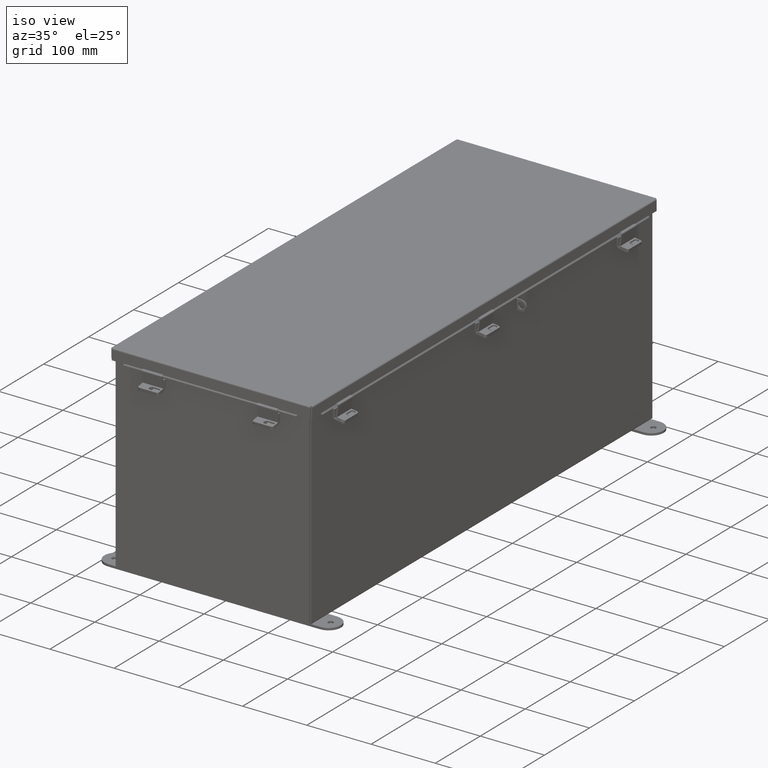
[diagram: clean part render]
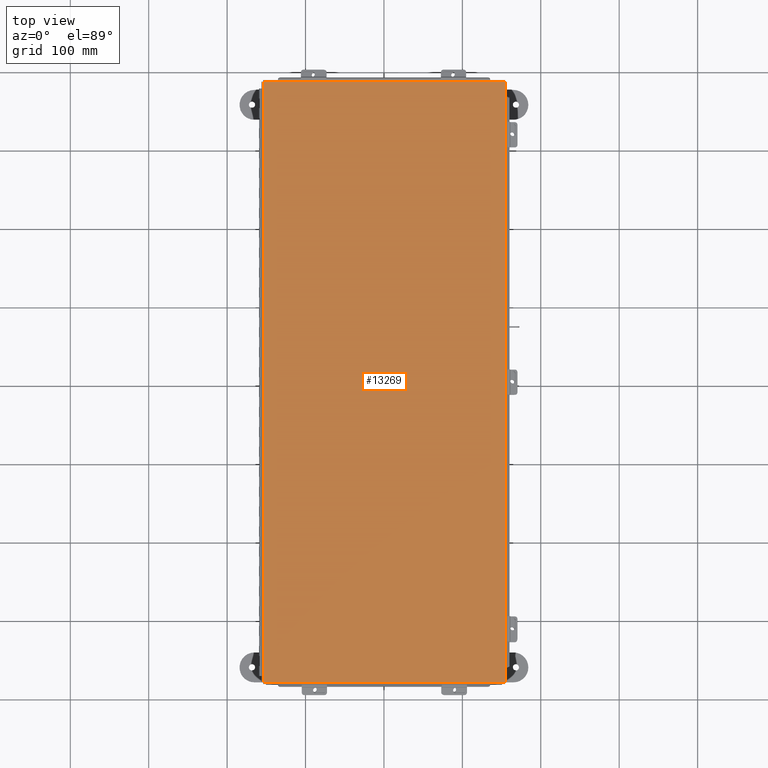
[diagram: tour spotlight — one face highlighted and labeled with its STEP entity id]
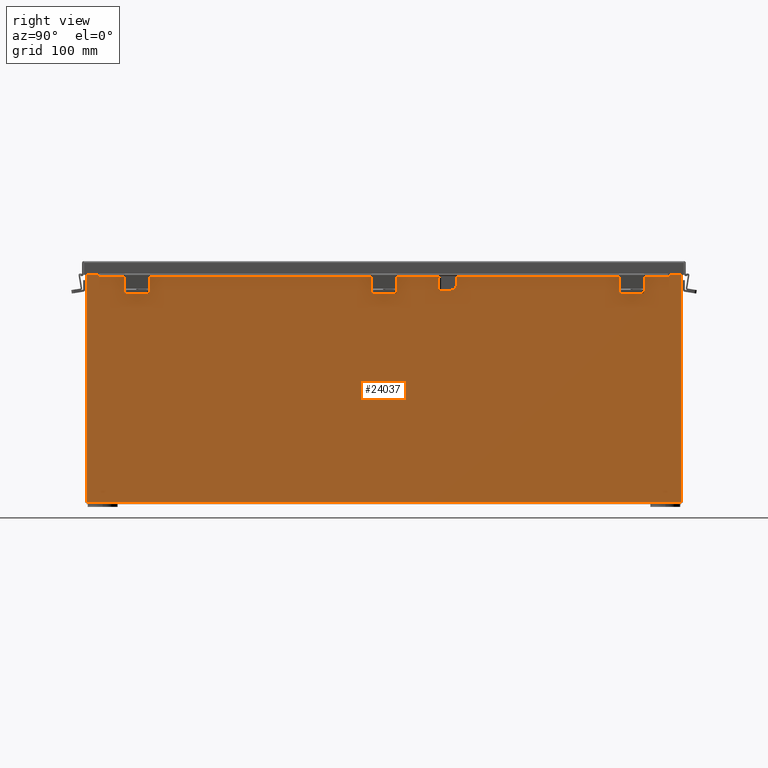
[diagram: tour spotlight — one face highlighted and labeled with its STEP entity id]
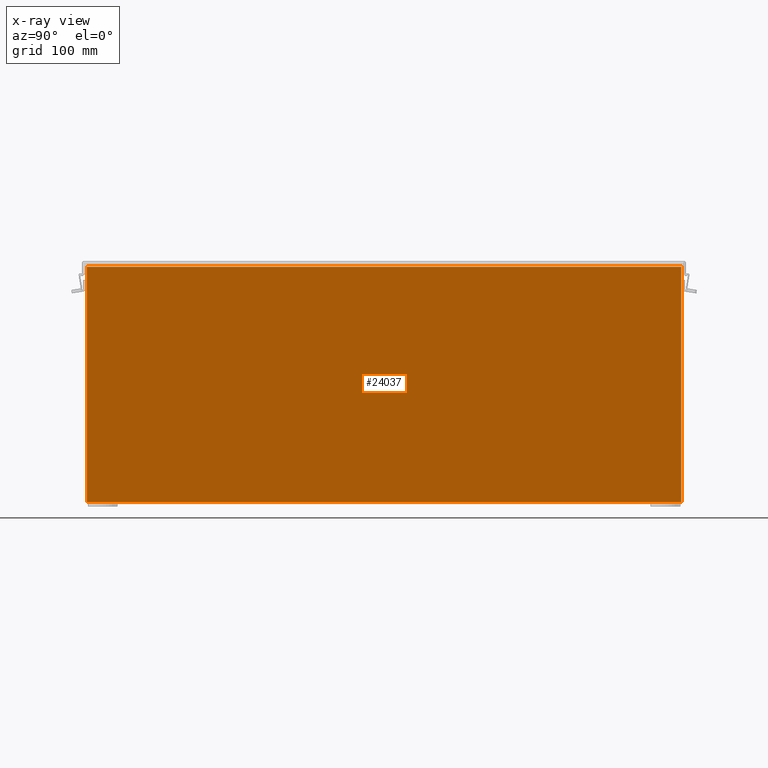
[diagram: x-ray of the same camera — body ghosted, this tour face saturated]
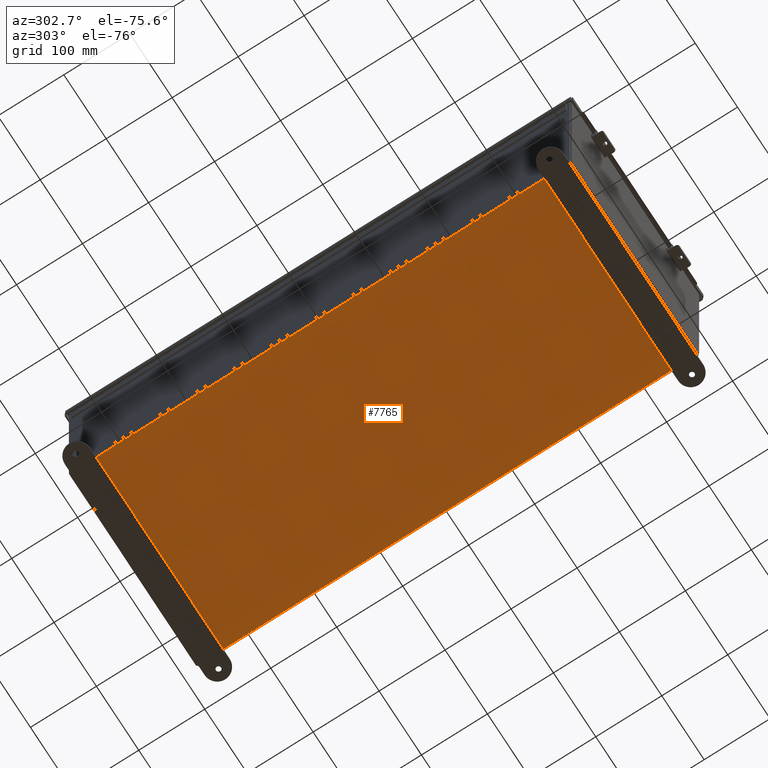
[diagram: tour spotlight — one face highlighted and labeled with its STEP entity id]
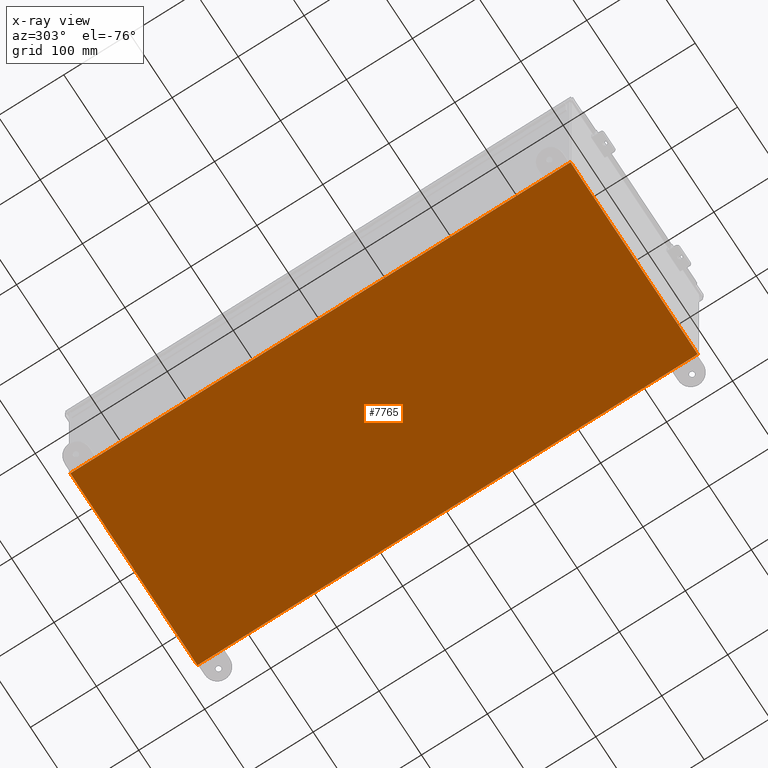
[diagram: x-ray of the same camera — body ghosted, this tour face saturated]
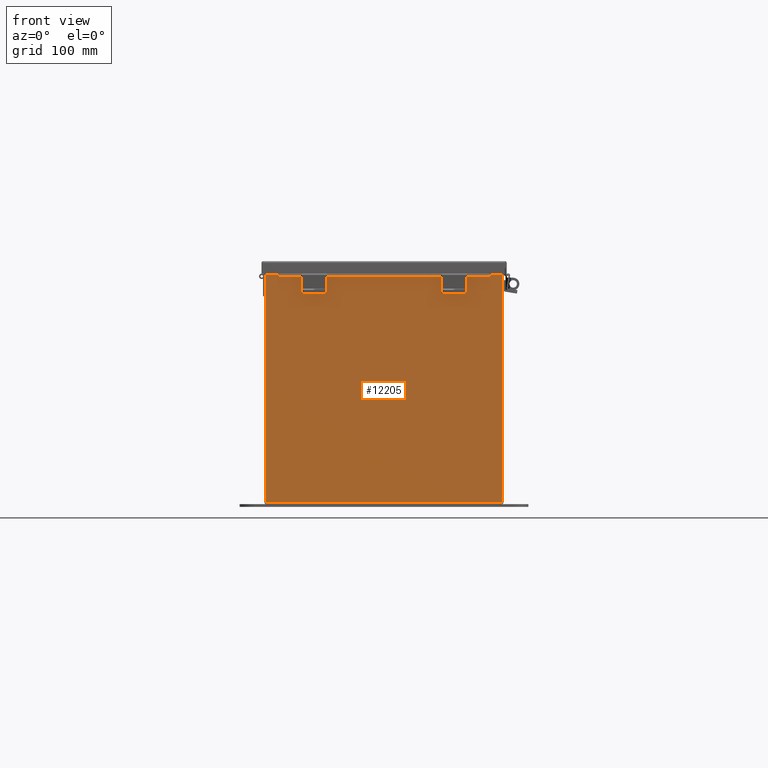
[diagram: tour spotlight — one face highlighted and labeled with its STEP entity id]
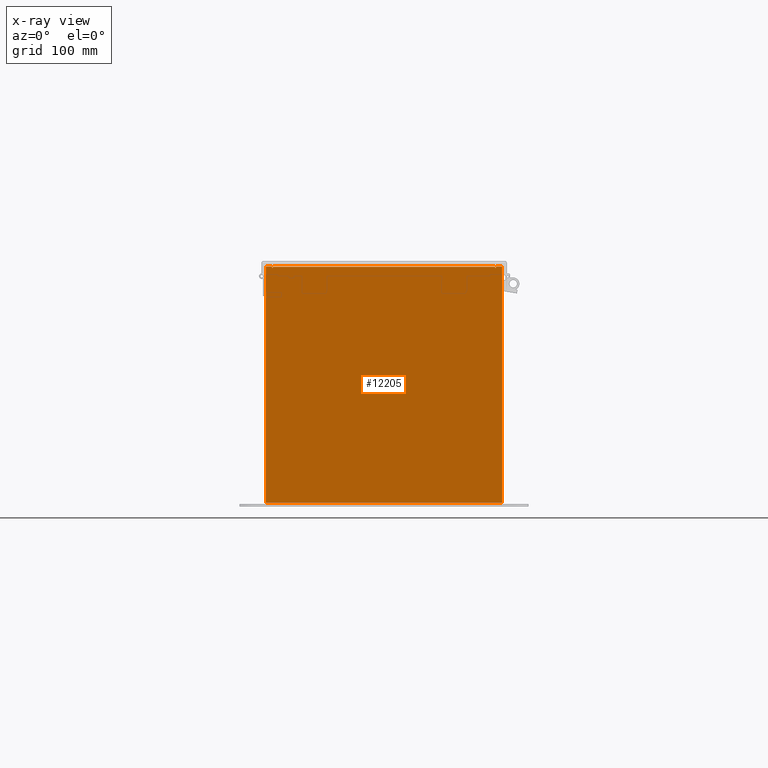
[diagram: x-ray of the same camera — body ghosted, this tour face saturated]
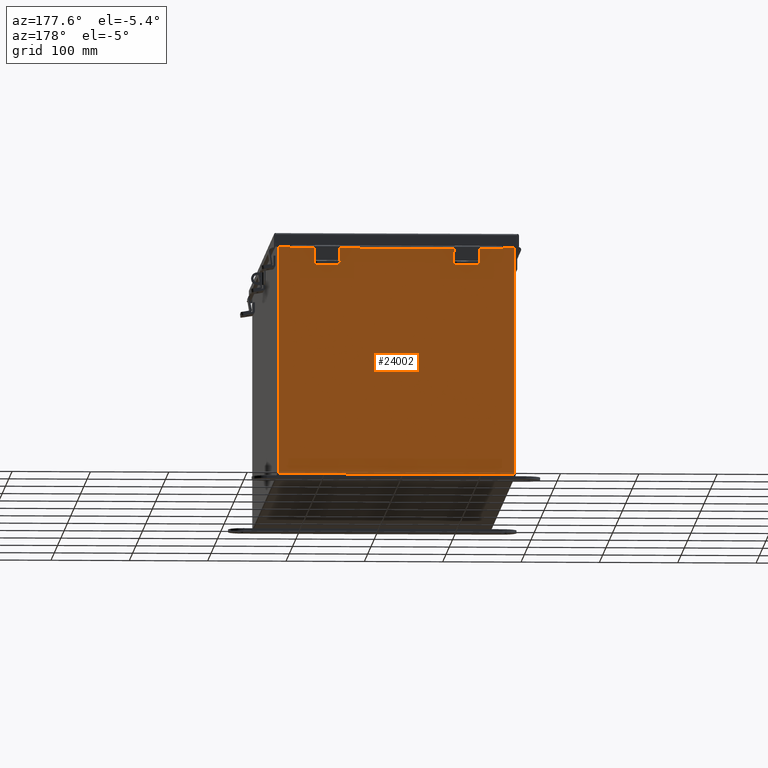
[diagram: tour spotlight — one face highlighted and labeled with its STEP entity id]
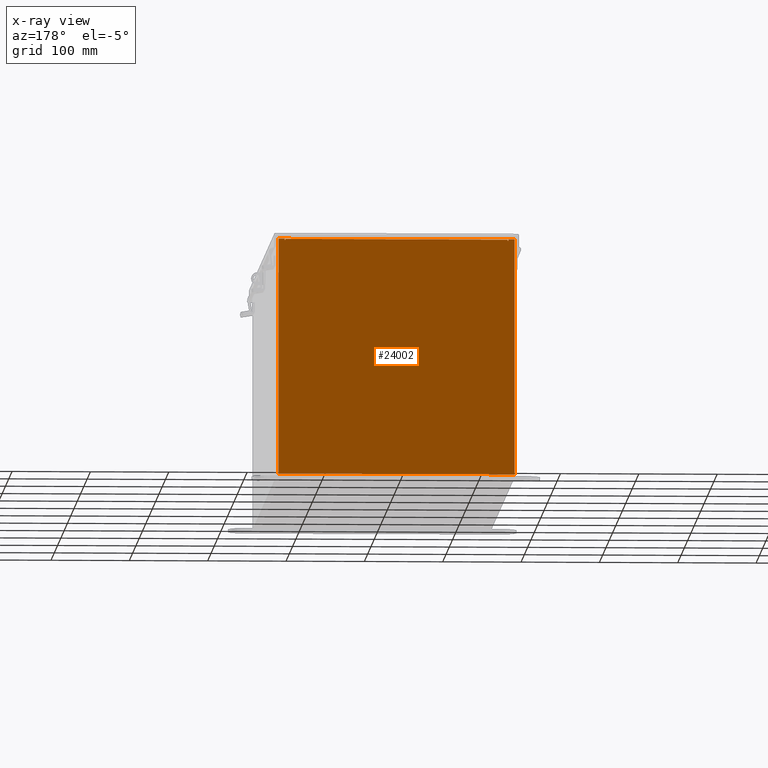
[diagram: x-ray of the same camera — body ghosted, this tour face saturated]
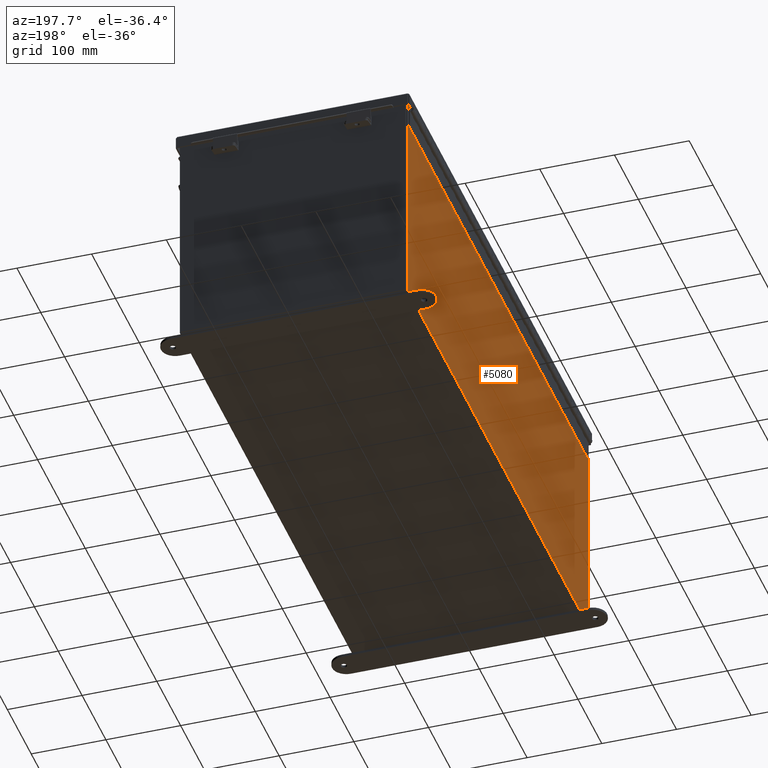
[diagram: tour spotlight — one face highlighted and labeled with its STEP entity id]
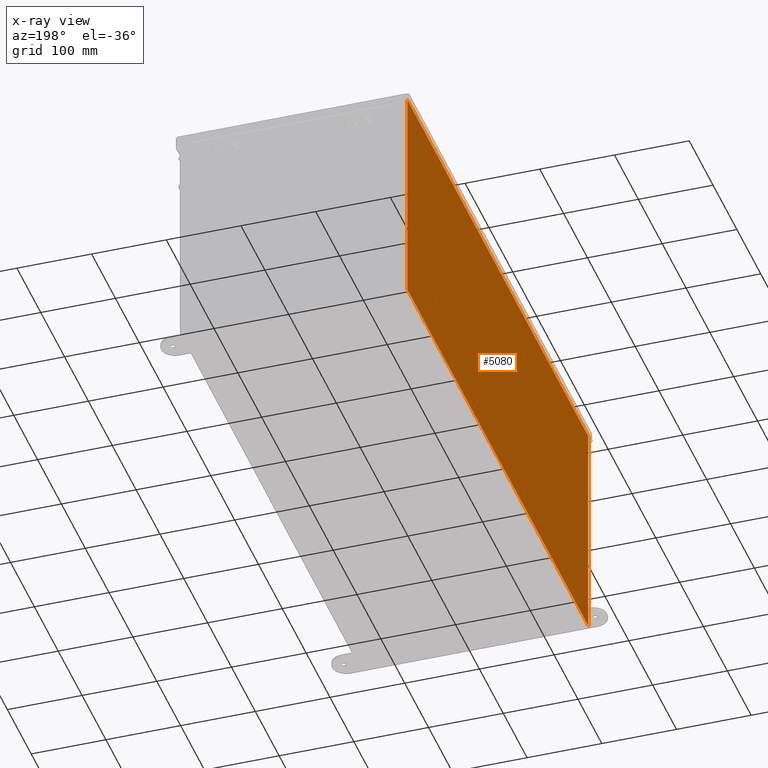
[diagram: x-ray of the same camera — body ghosted, this tour face saturated]
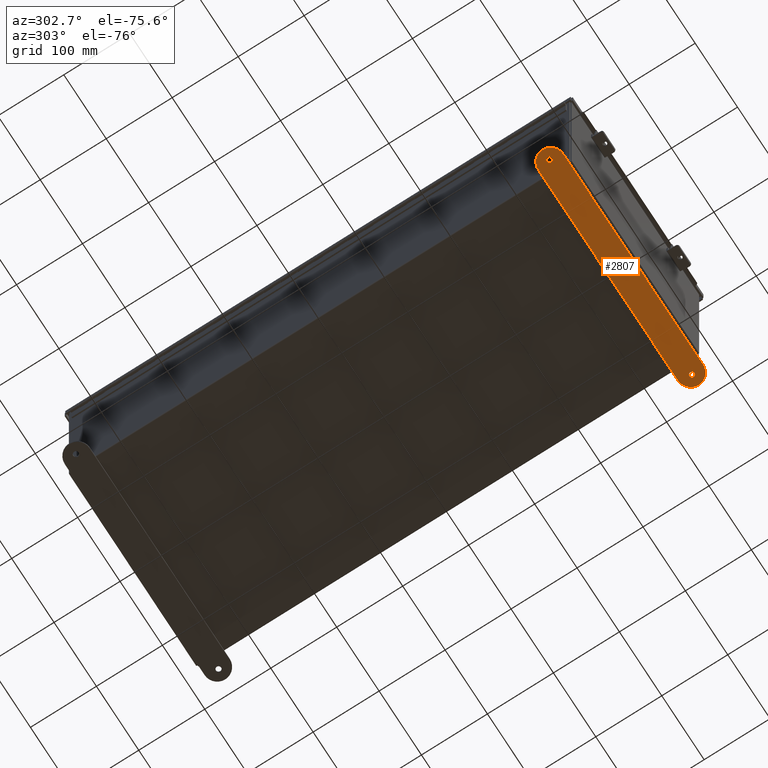
[diagram: tour spotlight — one face highlighted and labeled with its STEP entity id]
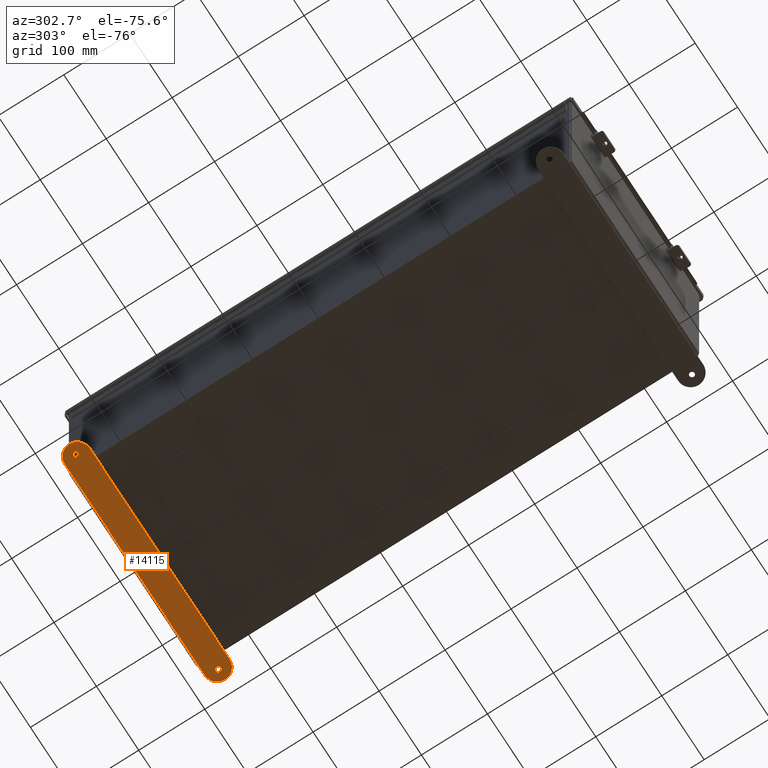
[diagram: tour spotlight — one face highlighted and labeled with its STEP entity id]
A machine part: a face-by-face anatomy tour. The part has 1098 B-rep faces; the first image is the clean iso view, then the 8 largest visible faces are spotlighted one at a time (largest first), each with its STEP entity span.

Face 1 — top view, entity #13269. In plain terms, the highlighted planar face has unit normal (-0, 0, 1).
Definition (entity closure, byte-faithful):
#215 = VECTOR ( 'NONE', #23844, 39.37007874015748100 ) ;
#716 = LINE ( 'NONE', #9741, #16252 ) ;
#1238 = VERTEX_POINT ( 'NONE', #24787 ) ;
#1556 = CARTESIAN_POINT ( 'NONE',  ( 6.068549999999991200, 15.06854999999999800, -0.07470000000000015500 ) ) ;
#2399 = EDGE_CURVE ( 'NONE', #3153, #1238, #716, .T. ) ;
#3153 = VERTEX_POINT ( 'NONE', #1556 ) ;
#3263 = ORIENTED_EDGE ( 'NONE', *, *, #2399, .T. ) ;
#3636 = DIRECTION ( 'NONE',  ( 4.879687452983731800E-043, -1.000000000000000000, -0.0000000000000000000 ) ) ;
#4693 = CARTESIAN_POINT ( 'NONE',  ( -6.068550000000009000, -15.06854999999999800, -0.07470000000000015500 ) ) ;
#5023 = CARTESIAN_POINT ( 'NONE',  ( -6.068550000000009000, -15.07447893218813400, -0.07470000000000015500 ) ) ;
#6963 = DIRECTION ( 'NONE',  ( -4.879687452983731800E-043, 1.000000000000000000, -0.0000000000000000000 ) ) ;
#8262 = ORIENTED_EDGE ( 'NONE', *, *, #18149, .T. ) ;
#9741 = CARTESIAN_POINT ( 'NONE',  ( 6.068549999999991200, 15.07447893218813400, -0.07470000000000015500 ) ) ;
#10112 = FACE_OUTER_BOUND ( 'NONE', #19840, .T. ) ;
#11003 = LINE ( 'NONE', #17698, #215 ) ;
#11055 = VERTEX_POINT ( 'NONE', #22234 ) ;
#11933 = VECTOR ( 'NONE', #16084, 39.37007874015748100 ) ;
#12567 = LINE ( 'NONE', #24276, #11933 ) ;
#13265 = ORIENTED_EDGE ( 'NONE', *, *, #18305, .T. ) ;
#13269 = ADVANCED_FACE ( 'NONE', ( #10112 ), #15801, .T. ) ;
#13835 = DIRECTION ( 'NONE',  ( -1.000000000000000000, 4.879687452983731800E-043, 0.0000000000000000000 ) ) ;
#15801 = PLANE ( 'NONE',  #22842 ) ;
#16084 = DIRECTION ( 'NONE',  ( -1.000000000000000000, 4.879687452983731800E-043, -0.0000000000000000000 ) ) ;
#16252 = VECTOR ( 'NONE', #3636, 39.37007874015748100 ) ;
#17698 = CARTESIAN_POINT ( 'NONE',  ( -6.074478932188144500, 15.06854999999999800, -0.07470000000000015500 ) ) ;
#18149 = EDGE_CURVE ( 'NONE', #11055, #3153, #11003, .T. ) ;
#18305 = EDGE_CURVE ( 'NONE', #1238, #23920, #12567, .T. ) ;
#18996 = VECTOR ( 'NONE', #6963, 39.37007874015748100 ) ;
#19840 = EDGE_LOOP ( 'NONE', ( #8262, #3263, #13265, #25478 ) ) ;
#19894 = CARTESIAN_POINT ( 'NONE',  ( 0.0000000000000000000, 0.0000000000000000000, -0.07470000000000015500 ) ) ;
#22234 = CARTESIAN_POINT ( 'NONE',  ( -6.068550000000009000, 15.06854999999999800, -0.07470000000000015500 ) ) ;
#22842 = AXIS2_PLACEMENT_3D ( 'NONE', #19894, #26059, #13835 ) ;
#23844 = DIRECTION ( 'NONE',  ( 1.000000000000000000, -4.879687452983731800E-043, -0.0000000000000000000 ) ) ;
#23920 = VERTEX_POINT ( 'NONE', #4693 ) ;
#24025 = EDGE_CURVE ( 'NONE', #23920, #11055, #24412, .T. ) ;
#24276 = CARTESIAN_POINT ( 'NONE',  ( 6.074478932188126700, -15.06854999999999800, -0.07470000000000015500 ) ) ;
#24412 = LINE ( 'NONE', #5023, #18996 ) ;
#24787 = CARTESIAN_POINT ( 'NONE',  ( 6.068549999999991200, -15.06854999999999800, -0.07470000000000015500 ) ) ;
#25478 = ORIENTED_EDGE ( 'NONE', *, *, #24025, .T. ) ;
#26059 = DIRECTION ( 'NONE',  ( 0.0000000000000000000, 0.0000000000000000000, -1.000000000000000000 ) ) ;

Face 2 — right view, entity #24037. An x-ray twin of the same camera follows (body ghosted, this face saturated) — the face is partly hidden behind the body. In plain terms, the highlighted planar face has unit normal (-1, 0, 0).
Definition (entity closure, byte-faithful):
#282 = CARTESIAN_POINT ( 'NONE',  ( 6.000000000000002700, -14.92529999999999800, 0.01299999999999929700 ) ) ;
#765 = ORIENTED_EDGE ( 'NONE', *, *, #21358, .T. ) ;
#880 = AXIS2_PLACEMENT_3D ( 'NONE', #7054, #9090, #23298 ) ;
#971 = CARTESIAN_POINT ( 'NONE',  ( 6.000000000000044400, 14.92529999999999800, 11.83759999999999800 ) ) ;
#3685 = VERTEX_POINT ( 'NONE', #23542 ) ;
#4342 = LINE ( 'NONE', #10402, #15083 ) ;
#4661 = LINE ( 'NONE', #971, #25600 ) ;
#6902 = CARTESIAN_POINT ( 'NONE',  ( 6.000000000000002700, 14.92529999999999800, -1.853388123201598600E-014 ) ) ;
#7054 = CARTESIAN_POINT ( 'NONE',  ( 6.000000000000002700, 0.0000000000000000000, -2.128280327564064900E-014 ) ) ;
#7173 = EDGE_CURVE ( 'NONE', #10042, #16719, #4342, .T. ) ;
#8006 = VECTOR ( 'NONE', #14482, 39.37007874015748100 ) ;
#8044 = EDGE_CURVE ( 'NONE', #20528, #10042, #4661, .T. ) ;
#8388 = CARTESIAN_POINT ( 'NONE',  ( 6.000000000000002700, -14.92529999999999800, 0.01299999999999984300 ) ) ;
#9090 = DIRECTION ( 'NONE',  ( -1.000000000000000000, 0.0000000000000000000, 3.503965158194251300E-015 ) ) ;
#9312 = LINE ( 'NONE', #6902, #14040 ) ;
#10042 = VERTEX_POINT ( 'NONE', #19102 ) ;
#10402 = CARTESIAN_POINT ( 'NONE',  ( 6.000000000000002700, -14.92529999999999800, -2.128280327564064900E-014 ) ) ;
#10697 = ORIENTED_EDGE ( 'NONE', *, *, #8044, .T. ) ;
#13401 = ORIENTED_EDGE ( 'NONE', *, *, #7173, .T. ) ;
#14016 = LINE ( 'NONE', #8388, #8006 ) ;
#14040 = VECTOR ( 'NONE', #19039, 39.37007874015748100 ) ;
#14482 = DIRECTION ( 'NONE',  ( 1.282694510298949100E-031, -1.000000000000000000, 3.660694248911933500E-017 ) ) ;
#15083 = VECTOR ( 'NONE', #16515, 39.37007874015748100 ) ;
#16138 = CARTESIAN_POINT ( 'NONE',  ( 6.000000000000044400, 14.92529999999999600, 11.83759999999999800 ) ) ;
#16515 = DIRECTION ( 'NONE',  ( -3.503965158194252100E-015, 0.0000000000000000000, -1.000000000000000000 ) ) ;
#16719 = VERTEX_POINT ( 'NONE', #282 ) ;
#19039 = DIRECTION ( 'NONE',  ( 3.503965158194252100E-015, -1.844192188523290500E-016, 1.000000000000000000 ) ) ;
#19102 = CARTESIAN_POINT ( 'NONE',  ( 6.000000000000044400, -14.92529999999999800, 11.83759999999999800 ) ) ;
#19184 = PLANE ( 'NONE',  #880 ) ;
#20528 = VERTEX_POINT ( 'NONE', #16138 ) ;
#21358 = EDGE_CURVE ( 'NONE', #3685, #20528, #9312, .T. ) ;
#21819 = EDGE_CURVE ( 'NONE', #3685, #16719, #14016, .T. ) ;
#22063 = EDGE_LOOP ( 'NONE', ( #10697, #13401, #24334, #765 ) ) ;
#23144 = FACE_OUTER_BOUND ( 'NONE', #22063, .T. ) ;
#23298 = DIRECTION ( 'NONE',  ( 3.503965158194251300E-015, 0.0000000000000000000, 1.000000000000000000 ) ) ;
#23330 = DIRECTION ( 'NONE',  ( -0.0000000000000000000, -1.000000000000000000, -0.0000000000000000000 ) ) ;
#23542 = CARTESIAN_POINT ( 'NONE',  ( 6.000000000000002700, 14.92529999999999800, 0.01299999999999875000 ) ) ;
#24037 = ADVANCED_FACE ( 'NONE', ( #23144 ), #19184, .F. ) ;
#24334 = ORIENTED_EDGE ( 'NONE', *, *, #21819, .F. ) ;
#25600 = VECTOR ( 'NONE', #23330, 39.37007874015748100 ) ;

Face 3 — auxiliary view, entity #7765. An x-ray twin of the same camera follows (body ghosted, this face saturated) — the face is partly hidden behind the body. In plain terms, the highlighted planar face has unit normal (0, 0, -1).
Definition (entity closure, byte-faithful):
#70 = PLANE ( 'NONE',  #5763 ) ;
#1255 = VECTOR ( 'NONE', #6481, 39.37007874015748100 ) ;
#1440 = VERTEX_POINT ( 'NONE', #25497 ) ;
#2084 = CARTESIAN_POINT ( 'NONE',  ( -5.912299999999998300, -14.92529999999999800, -0.07469999999999940600 ) ) ;
#2133 = CARTESIAN_POINT ( 'NONE',  ( -5.912299999999998300, 14.92529999999999800, -0.07470000000000000300 ) ) ;
#2138 = EDGE_LOOP ( 'NONE', ( #10234, #11947, #23743, #10565 ) ) ;
#2187 = VECTOR ( 'NONE', #7358, 39.37007874015748100 ) ;
#2378 = CARTESIAN_POINT ( 'NONE',  ( -5.912299999999998300, -14.92530000000000200, -0.07469999999999940600 ) ) ;
#2837 = LINE ( 'NONE', #4375, #12951 ) ;
#4375 = CARTESIAN_POINT ( 'NONE',  ( 5.912300000000002800, 14.92529999999999800, -0.07470000000000048800 ) ) ;
#5610 = FACE_OUTER_BOUND ( 'NONE', #2138, .T. ) ;
#5763 = AXIS2_PLACEMENT_3D ( 'NONE', #18340, #22430, #10285 ) ;
#5847 = VECTOR ( 'NONE', #20662, 39.37007874015748100 ) ;
#6481 = DIRECTION ( 'NONE',  ( -0.0000000000000000000, 1.000000000000000000, -0.0000000000000000000 ) ) ;
#7358 = DIRECTION ( 'NONE',  ( -1.000000000000000000, -0.0000000000000000000, -0.0000000000000000000 ) ) ;
#7765 = ADVANCED_FACE ( 'NONE', ( #5610 ), #70, .T. ) ;
#10234 = ORIENTED_EDGE ( 'NONE', *, *, #24791, .F. ) ;
#10285 = DIRECTION ( 'NONE',  ( -1.000000000000000000, 0.0000000000000000000, -0.0000000000000000000 ) ) ;
#10565 = ORIENTED_EDGE ( 'NONE', *, *, #12748, .T. ) ;
#11230 = CARTESIAN_POINT ( 'NONE',  ( 5.912300000000002800, 14.92529999999999800, -0.07470000000000048800 ) ) ;
#11947 = ORIENTED_EDGE ( 'NONE', *, *, #12195, .T. ) ;
#12195 = EDGE_CURVE ( 'NONE', #21431, #1440, #2837, .T. ) ;
#12748 = EDGE_CURVE ( 'NONE', #21751, #24408, #17426, .T. ) ;
#12951 = VECTOR ( 'NONE', #16492, 39.37007874015748100 ) ;
#16492 = DIRECTION ( 'NONE',  ( -0.0000000000000000000, -1.000000000000000000, -0.0000000000000000000 ) ) ;
#17426 = LINE ( 'NONE', #2378, #1255 ) ;
#17457 = CARTESIAN_POINT ( 'NONE',  ( -5.999999999999998200, 14.92529999999999800, -0.07470000000000000300 ) ) ;
#18340 = CARTESIAN_POINT ( 'NONE',  ( 0.0000000000000000000, 0.0000000000000000000, -0.07470000000000000300 ) ) ;
#18364 = LINE ( 'NONE', #17457, #2187 ) ;
#18603 = CARTESIAN_POINT ( 'NONE',  ( -5.999999999999998200, -14.92530000000000200, -0.07470000000000000300 ) ) ;
#20662 = DIRECTION ( 'NONE',  ( 1.000000000000000000, 3.642463991552351500E-016, 0.0000000000000000000 ) ) ;
#21216 = EDGE_CURVE ( 'NONE', #21751, #1440, #22659, .T. ) ;
#21431 = VERTEX_POINT ( 'NONE', #11230 ) ;
#21751 = VERTEX_POINT ( 'NONE', #2084 ) ;
#22430 = DIRECTION ( 'NONE',  ( 0.0000000000000000000, 0.0000000000000000000, -1.000000000000000000 ) ) ;
#22659 = LINE ( 'NONE', #18603, #5847 ) ;
#23743 = ORIENTED_EDGE ( 'NONE', *, *, #21216, .F. ) ;
#24408 = VERTEX_POINT ( 'NONE', #2133 ) ;
#24791 = EDGE_CURVE ( 'NONE', #21431, #24408, #18364, .T. ) ;
#25497 = CARTESIAN_POINT ( 'NONE',  ( 5.912300000000002800, -14.92529999999999800, -0.07470000000000000300 ) ) ;

Face 4 — front view, entity #12205. An x-ray twin of the same camera follows (body ghosted, this face saturated) — the face is partly hidden behind the body. In plain terms, the highlighted planar face has unit normal (-0, 1, -0).
Definition (entity closure, byte-faithful):
#51 = CARTESIAN_POINT ( 'NONE',  ( -5.582300000000000000, 2.185478394931410600E-015, 5.912299999999998300 ) ) ;
#214 = CARTESIAN_POINT ( 'NONE',  ( 5.582299999999989400, 0.0000000000000000000, 5.874950000000001000 ) ) ;
#539 = DIRECTION ( 'NONE',  ( 0.0000000000000000000, 0.0000000000000000000, 1.000000000000000000 ) ) ;
#572 = EDGE_CURVE ( 'NONE', #10471, #17448, #17966, .T. ) ;
#682 = EDGE_LOOP ( 'NONE', ( #2908, #930, #25291, #8595, #14240, #7998, #25892, #14247, #18599, #16301, #12941, #4489 ) ) ;
#718 = DIRECTION ( 'NONE',  ( 0.0000000000000000000, 0.0000000000000000000, -1.000000000000000000 ) ) ;
#930 = ORIENTED_EDGE ( 'NONE', *, *, #18910, .F. ) ;
#1260 = EDGE_CURVE ( 'NONE', #9568, #17448, #22047, .T. ) ;
#2195 = EDGE_CURVE ( 'NONE', #9093, #10471, #16590, .T. ) ;
#2200 = CARTESIAN_POINT ( 'NONE',  ( -5.925300000000000000, 0.0000000000000000000, 5.925300000000002700 ) ) ;
#2787 = AXIS2_PLACEMENT_3D ( 'NONE', #19343, #7202, #21405 ) ;
#2908 = ORIENTED_EDGE ( 'NONE', *, *, #1260, .F. ) ;
#3013 = DIRECTION ( 'NONE',  ( 9.220960942616447800E-017, 0.0000000000000000000, -1.000000000000000000 ) ) ;
#3133 = DIRECTION ( 'NONE',  ( 0.0000000000000000000, 0.0000000000000000000, 1.000000000000000000 ) ) ;
#3134 = VECTOR ( 'NONE', #24424, 39.37007874015748100 ) ;
#3405 = VERTEX_POINT ( 'NONE', #14385 ) ;
#4489 = ORIENTED_EDGE ( 'NONE', *, *, #572, .T. ) ;
#5098 = EDGE_CURVE ( 'NONE', #3405, #13216, #13861, .T. ) ;
#5682 = VERTEX_POINT ( 'NONE', #6208 ) ;
#5721 = EDGE_CURVE ( 'NONE', #3405, #18086, #5955, .T. ) ;
#5880 = VECTOR ( 'NONE', #539, 39.37007874015748100 ) ;
#5955 = LINE ( 'NONE', #2200, #26271 ) ;
#6208 = CARTESIAN_POINT ( 'NONE',  ( 5.582300000000000000, 0.0000000000000000000, 5.912300000000000100 ) ) ;
#6984 = CARTESIAN_POINT ( 'NONE',  ( 5.925300000000000000, 0.0000000000000000000, 5.925300000000000000 ) ) ;
#7167 = DIRECTION ( 'NONE',  ( 0.0000000000000000000, 0.0000000000000000000, 1.000000000000000000 ) ) ;
#7202 = DIRECTION ( 'NONE',  ( 5.526334185345597900E-031, 1.000000000000000000, -0.0000000000000000000 ) ) ;
#7574 = FACE_OUTER_BOUND ( 'NONE', #682, .T. ) ;
#7998 = ORIENTED_EDGE ( 'NONE', *, *, #13706, .F. ) ;
#8077 = CARTESIAN_POINT ( 'NONE',  ( 5.925300000000001800, 0.0000000000000000000, -5.925300000000000000 ) ) ;
#8114 = DIRECTION ( 'NONE',  ( 1.000000000000000000, 5.526334185345597900E-031, -0.0000000000000000000 ) ) ;
#8121 = EDGE_CURVE ( 'NONE', #14833, #9093, #14107, .T. ) ;
#8161 = CARTESIAN_POINT ( 'NONE',  ( 5.619650000000000000, 0.0000000000000000000, 0.0000000000000000000 ) ) ;
#8400 = CARTESIAN_POINT ( 'NONE',  ( -5.582299999999999200, 2.185478394931410600E-015, 5.912299999999998300 ) ) ;
#8430 = PLANE ( 'NONE',  #23506 ) ;
#8595 = ORIENTED_EDGE ( 'NONE', *, *, #14690, .T. ) ;
#8766 = CARTESIAN_POINT ( 'NONE',  ( -5.619649999999999100, 0.0000000000000000000, 5.925300000000000000 ) ) ;
#8994 = VECTOR ( 'NONE', #24685, 39.37007874015748100 ) ;
#9093 = VERTEX_POINT ( 'NONE', #23193 ) ;
#9228 = CARTESIAN_POINT ( 'NONE',  ( 5.582300000000000000, 0.0000000000000000000, 0.0000000000000000000 ) ) ;
#9568 = VERTEX_POINT ( 'NONE', #17593 ) ;
#9699 = VERTEX_POINT ( 'NONE', #18036 ) ;
#10044 = CARTESIAN_POINT ( 'NONE',  ( -5.600975000000008000, 0.0000000000000000000, 5.874949999999999200 ) ) ;
#10303 = CARTESIAN_POINT ( 'NONE',  ( -5.925300000000000000, 0.0000000000000000000, 5.925300000000002700 ) ) ;
#10386 = CARTESIAN_POINT ( 'NONE',  ( 0.0000000000000000000, 0.0000000000000000000, 0.0000000000000000000 ) ) ;
#10471 = VERTEX_POINT ( 'NONE', #10303 ) ;
#10485 = CARTESIAN_POINT ( 'NONE',  ( -5.582299999999999200, 0.0000000000000000000, 0.0000000000000000000 ) ) ;
#10653 = CARTESIAN_POINT ( 'NONE',  ( -5.619649999999999100, 0.0000000000000000000, 0.0000000000000000000 ) ) ;
#10671 = VERTEX_POINT ( 'NONE', #8400 ) ;
#11197 = CARTESIAN_POINT ( 'NONE',  ( -5.925300000000000000, 0.0000000000000000000, 5.925300000000002700 ) ) ;
#11934 = VECTOR ( 'NONE', #13210, 39.37007874015748100 ) ;
#12071 = DIRECTION ( 'NONE',  ( 0.0000000000000000000, 0.0000000000000000000, -1.000000000000000000 ) ) ;
#12205 = ADVANCED_FACE ( 'NONE', ( #7574 ), #8430, .F. ) ;
#12830 = DIRECTION ( 'NONE',  ( -5.526334185345597900E-031, -1.000000000000000000, -0.0000000000000000000 ) ) ;
#12941 = ORIENTED_EDGE ( 'NONE', *, *, #2195, .T. ) ;
#13210 = DIRECTION ( 'NONE',  ( 1.000000000000000000, 5.526334185345597900E-031, 0.0000000000000000000 ) ) ;
#13216 = VERTEX_POINT ( 'NONE', #26328 ) ;
#13706 = EDGE_CURVE ( 'NONE', #13216, #21794, #16737, .T. ) ;
#13861 = LINE ( 'NONE', #8161, #3134 ) ;
#14107 = LINE ( 'NONE', #15315, #23665 ) ;
#14240 = ORIENTED_EDGE ( 'NONE', *, *, #14359, .F. ) ;
#14247 = ORIENTED_EDGE ( 'NONE', *, *, #5721, .T. ) ;
#14359 = EDGE_CURVE ( 'NONE', #21794, #5682, #14970, .T. ) ;
#14385 = CARTESIAN_POINT ( 'NONE',  ( 5.619649999999999100, 0.0000000000000000000, 5.925300000000002700 ) ) ;
#14690 = EDGE_CURVE ( 'NONE', #10671, #5682, #24186, .T. ) ;
#14833 = VERTEX_POINT ( 'NONE', #8077 ) ;
#14970 = LINE ( 'NONE', #9228, #21025 ) ;
#15154 = CARTESIAN_POINT ( 'NONE',  ( -5.925300000000000000, 0.0000000000000000000, 5.925300000000002700 ) ) ;
#15315 = CARTESIAN_POINT ( 'NONE',  ( -5.925300000000000000, 0.0000000000000000000, -5.925299999999999100 ) ) ;
#16289 = DIRECTION ( 'NONE',  ( 1.000000000000000000, 5.526334185345597900E-031, 0.0000000000000000000 ) ) ;
#16301 = ORIENTED_EDGE ( 'NONE', *, *, #8121, .T. ) ;
#16590 = LINE ( 'NONE', #15154, #26147 ) ;
#16737 = CIRCLE ( 'NONE', #2787, 0.01867500000000058700 ) ;
#17448 = VERTEX_POINT ( 'NONE', #8766 ) ;
#17489 = VECTOR ( 'NONE', #8114, 39.37007874015748100 ) ;
#17593 = CARTESIAN_POINT ( 'NONE',  ( -5.619650000000008000, 0.0000000000000000000, 5.874949999999999200 ) ) ;
#17966 = LINE ( 'NONE', #11197, #11934 ) ;
#18036 = CARTESIAN_POINT ( 'NONE',  ( -5.582300000000008900, 0.0000000000000000000, 5.874949999999999200 ) ) ;
#18086 = VERTEX_POINT ( 'NONE', #6984 ) ;
#18174 = LINE ( 'NONE', #25372, #23591 ) ;
#18599 = ORIENTED_EDGE ( 'NONE', *, *, #21403, .T. ) ;
#18910 = EDGE_CURVE ( 'NONE', #9699, #9568, #19528, .T. ) ;
#19343 = CARTESIAN_POINT ( 'NONE',  ( 5.600974999999990300, 0.0000000000000000000, 5.874950000000001000 ) ) ;
#19528 = CIRCLE ( 'NONE', #21868, 0.01867500000000058700 ) ;
#20654 = EDGE_CURVE ( 'NONE', #10671, #9699, #24559, .T. ) ;
#21025 = VECTOR ( 'NONE', #7167, 39.37007874015748100 ) ;
#21403 = EDGE_CURVE ( 'NONE', #18086, #14833, #18174, .T. ) ;
#21405 = DIRECTION ( 'NONE',  ( 0.0000000000000000000, 0.0000000000000000000, -1.000000000000000000 ) ) ;
#21794 = VERTEX_POINT ( 'NONE', #214 ) ;
#21868 = AXIS2_PLACEMENT_3D ( 'NONE', #10044, #24254, #12071 ) ;
#22047 = LINE ( 'NONE', #10653, #5880 ) ;
#23193 = CARTESIAN_POINT ( 'NONE',  ( -5.925300000000000000, 0.0000000000000000000, -5.925299999999999100 ) ) ;
#23506 = AXIS2_PLACEMENT_3D ( 'NONE', #10386, #12830, #718 ) ;
#23591 = VECTOR ( 'NONE', #3013, 39.37007874015748100 ) ;
#23665 = VECTOR ( 'NONE', #25637, 39.37007874015748100 ) ;
#24186 = LINE ( 'NONE', #51, #17489 ) ;
#24254 = DIRECTION ( 'NONE',  ( 5.526334185345597900E-031, 1.000000000000000000, -0.0000000000000000000 ) ) ;
#24424 = DIRECTION ( 'NONE',  ( 0.0000000000000000000, 0.0000000000000000000, -1.000000000000000000 ) ) ;
#24559 = LINE ( 'NONE', #10485, #8994 ) ;
#24685 = DIRECTION ( 'NONE',  ( 0.0000000000000000000, 0.0000000000000000000, -1.000000000000000000 ) ) ;
#25291 = ORIENTED_EDGE ( 'NONE', *, *, #20654, .F. ) ;
#25372 = CARTESIAN_POINT ( 'NONE',  ( 5.925300000000000000, 0.0000000000000000000, 5.925300000000000000 ) ) ;
#25637 = DIRECTION ( 'NONE',  ( -1.000000000000000000, -5.532854492637916100E-031, 9.220960942616447800E-017 ) ) ;
#25892 = ORIENTED_EDGE ( 'NONE', *, *, #5098, .F. ) ;
#26147 = VECTOR ( 'NONE', #3133, 39.37007874015748100 ) ;
#26271 = VECTOR ( 'NONE', #16289, 39.37007874015748100 ) ;
#26328 = CARTESIAN_POINT ( 'NONE',  ( 5.619649999999990300, 0.0000000000000000000, 5.874950000000001000 ) ) ;

Face 5 — auxiliary view, entity #24002. An x-ray twin of the same camera follows (body ghosted, this face saturated) — the face is partly hidden behind the body. In plain terms, the highlighted planar face has unit normal (0, -1, 0).
Definition (entity closure, byte-faithful):
#30 = DIRECTION ( 'NONE',  ( 0.0000000000000000000, 0.0000000000000000000, -1.000000000000000000 ) ) ;
#835 = PLANE ( 'NONE',  #23162 ) ;
#1303 = LINE ( 'NONE', #2075, #5442 ) ;
#1472 = CARTESIAN_POINT ( 'NONE',  ( 5.619650000000000000, 0.0000000000000000000, 0.0000000000000000000 ) ) ;
#1697 = LINE ( 'NONE', #4152, #17247 ) ;
#1915 = CARTESIAN_POINT ( 'NONE',  ( -5.619649999999999100, 0.0000000000000000000, 5.925300000000001800 ) ) ;
#1943 = CARTESIAN_POINT ( 'NONE',  ( 5.619649999999999100, 0.0000000000000000000, 5.925299999999999100 ) ) ;
#2075 = CARTESIAN_POINT ( 'NONE',  ( -5.582299999999999200, 0.0000000000000000000, 0.0000000000000000000 ) ) ;
#2422 = ORIENTED_EDGE ( 'NONE', *, *, #7977, .T. ) ;
#2839 = DIRECTION ( 'NONE',  ( 1.000000000000000000, 0.0000000000000000000, -1.844192188523290300E-016 ) ) ;
#2896 = CARTESIAN_POINT ( 'NONE',  ( 0.0000000000000000000, 0.0000000000000000000, 0.0000000000000000000 ) ) ;
#3114 = VECTOR ( 'NONE', #25665, 39.37007874015748100 ) ;
#3507 = LINE ( 'NONE', #16751, #8891 ) ;
#3865 = EDGE_LOOP ( 'NONE', ( #24017, #18709, #8656, #14586, #6264, #25186, #9399, #13116, #4854, #26113, #6078, #2422 ) ) ;
#4152 = CARTESIAN_POINT ( 'NONE',  ( -5.925300000000000000, 0.0000000000000000000, -5.925300000000001800 ) ) ;
#4340 = CARTESIAN_POINT ( 'NONE',  ( 5.925300000000000000, 0.0000000000000000000, 5.925299999999999100 ) ) ;
#4383 = DIRECTION ( 'NONE',  ( 0.0000000000000000000, 0.0000000000000000000, 1.000000000000000000 ) ) ;
#4505 = DIRECTION ( 'NONE',  ( 0.0000000000000000000, 0.0000000000000000000, 1.000000000000000000 ) ) ;
#4725 = CARTESIAN_POINT ( 'NONE',  ( 5.582300000000000000, 0.0000000000000000000, 5.912300000000001000 ) ) ;
#4854 = ORIENTED_EDGE ( 'NONE', *, *, #4983, .T. ) ;
#4935 = DIRECTION ( 'NONE',  ( 0.0000000000000000000, -1.000000000000000000, 0.0000000000000000000 ) ) ;
#4983 = EDGE_CURVE ( 'NONE', #16157, #18054, #21842, .T. ) ;
#5037 = LINE ( 'NONE', #1472, #21207 ) ;
#5442 = VECTOR ( 'NONE', #30, 39.37007874015748100 ) ;
#5908 = LINE ( 'NONE', #14570, #20806 ) ;
#6078 = ORIENTED_EDGE ( 'NONE', *, *, #22948, .T. ) ;
#6264 = ORIENTED_EDGE ( 'NONE', *, *, #6695, .F. ) ;
#6489 = CARTESIAN_POINT ( 'NONE',  ( -5.582299999999999200, 0.0000000000000000000, 5.912300000000005400 ) ) ;
#6695 = EDGE_CURVE ( 'NONE', #16137, #7925, #5908, .T. ) ;
#7459 = CARTESIAN_POINT ( 'NONE',  ( 5.925300000000000000, 0.0000000000000000000, 5.925299999999999100 ) ) ;
#7925 = VERTEX_POINT ( 'NONE', #4725 ) ;
#7959 = DIRECTION ( 'NONE',  ( -0.0000000000000000000, -0.0000000000000000000, 1.000000000000000000 ) ) ;
#7977 = EDGE_CURVE ( 'NONE', #22169, #23768, #22086, .T. ) ;
#8656 = ORIENTED_EDGE ( 'NONE', *, *, #11097, .F. ) ;
#8891 = VECTOR ( 'NONE', #18795, 39.37007874015748100 ) ;
#9399 = ORIENTED_EDGE ( 'NONE', *, *, #25391, .F. ) ;
#9661 = CARTESIAN_POINT ( 'NONE',  ( -5.600974999999998300, 0.0000000000000000000, 5.874950000000000100 ) ) ;
#9662 = DIRECTION ( 'NONE',  ( -0.0000000000000000000, 1.000000000000000000, -0.0000000000000000000 ) ) ;
#10810 = LINE ( 'NONE', #20032, #26363 ) ;
#11043 = VECTOR ( 'NONE', #17565, 39.37007874015748100 ) ;
#11097 = EDGE_CURVE ( 'NONE', #21232, #14846, #1303, .T. ) ;
#11694 = DIRECTION ( 'NONE',  ( 0.0000000000000000000, 0.0000000000000000000, -1.000000000000000000 ) ) ;
#11704 = EDGE_CURVE ( 'NONE', #12618, #16157, #3507, .T. ) ;
#12618 = VERTEX_POINT ( 'NONE', #1943 ) ;
#12817 = CIRCLE ( 'NONE', #14028, 0.01867499999999949400 ) ;
#13053 = VERTEX_POINT ( 'NONE', #25808 ) ;
#13116 = ORIENTED_EDGE ( 'NONE', *, *, #11704, .T. ) ;
#13472 = CARTESIAN_POINT ( 'NONE',  ( -5.925300000000000000, 0.0000000000000000000, 5.925300000000001800 ) ) ;
#13847 = LINE ( 'NONE', #19505, #3114 ) ;
#13909 = LINE ( 'NONE', #24688, #18694 ) ;
#14028 = AXIS2_PLACEMENT_3D ( 'NONE', #9661, #23876, #11694 ) ;
#14570 = CARTESIAN_POINT ( 'NONE',  ( 5.582300000000000000, 0.0000000000000000000, 0.0000000000000000000 ) ) ;
#14586 = ORIENTED_EDGE ( 'NONE', *, *, #17026, .T. ) ;
#14819 = AXIS2_PLACEMENT_3D ( 'NONE', #21811, #9662, #23877 ) ;
#14846 = VERTEX_POINT ( 'NONE', #18274 ) ;
#15032 = CARTESIAN_POINT ( 'NONE',  ( 5.925300000000000000, 0.0000000000000000000, -5.925300000000001800 ) ) ;
#15324 = EDGE_CURVE ( 'NONE', #22834, #16137, #19677, .T. ) ;
#16137 = VERTEX_POINT ( 'NONE', #20545 ) ;
#16157 = VERTEX_POINT ( 'NONE', #4340 ) ;
#16675 = VECTOR ( 'NONE', #2839, 39.37007874015748100 ) ;
#16751 = CARTESIAN_POINT ( 'NONE',  ( -5.925300000000000000, 0.0000000000000000000, 5.925300000000001800 ) ) ;
#17026 = EDGE_CURVE ( 'NONE', #21232, #7925, #13847, .T. ) ;
#17247 = VECTOR ( 'NONE', #18300, 39.37007874015748100 ) ;
#17565 = DIRECTION ( 'NONE',  ( 0.0000000000000000000, 0.0000000000000000000, -1.000000000000000000 ) ) ;
#17604 = DIRECTION ( 'NONE',  ( 0.0000000000000000000, 0.0000000000000000000, -1.000000000000000000 ) ) ;
#18054 = VERTEX_POINT ( 'NONE', #15032 ) ;
#18274 = CARTESIAN_POINT ( 'NONE',  ( -5.582299999999999200, 0.0000000000000000000, 5.874950000000000100 ) ) ;
#18300 = DIRECTION ( 'NONE',  ( -1.000000000000000000, -0.0000000000000000000, -0.0000000000000000000 ) ) ;
#18694 = VECTOR ( 'NONE', #4383, 39.37007874015748100 ) ;
#18709 = ORIENTED_EDGE ( 'NONE', *, *, #19448, .F. ) ;
#18795 = DIRECTION ( 'NONE',  ( 1.000000000000000000, 0.0000000000000000000, -1.844192188523290300E-016 ) ) ;
#19109 = DIRECTION ( 'NONE',  ( 0.0000000000000000000, -0.0000000000000000000, -1.000000000000000000 ) ) ;
#19448 = EDGE_CURVE ( 'NONE', #14846, #24591, #12817, .T. ) ;
#19505 = CARTESIAN_POINT ( 'NONE',  ( -5.582300000000000000, 0.0000000000000000000, 5.912300000000005400 ) ) ;
#19677 = CIRCLE ( 'NONE', #14819, 0.01867499999999949400 ) ;
#20032 = CARTESIAN_POINT ( 'NONE',  ( -5.925300000000000000, 0.0000000000000000000, 5.925300000000001800 ) ) ;
#20262 = EDGE_CURVE ( 'NONE', #18054, #13053, #1697, .T. ) ;
#20545 = CARTESIAN_POINT ( 'NONE',  ( 5.582299999999999200, 0.0000000000000000000, 5.874950000000000100 ) ) ;
#20806 = VECTOR ( 'NONE', #4505, 39.37007874015748100 ) ;
#20857 = CARTESIAN_POINT ( 'NONE',  ( -5.619649999999998300, 0.0000000000000000000, 5.874950000000000100 ) ) ;
#21207 = VECTOR ( 'NONE', #17604, 39.37007874015748100 ) ;
#21232 = VERTEX_POINT ( 'NONE', #6489 ) ;
#21811 = CARTESIAN_POINT ( 'NONE',  ( 5.600975000000000000, 0.0000000000000000000, 5.874950000000000100 ) ) ;
#21842 = LINE ( 'NONE', #7459, #11043 ) ;
#22086 = LINE ( 'NONE', #25117, #16675 ) ;
#22169 = VERTEX_POINT ( 'NONE', #13472 ) ;
#22834 = VERTEX_POINT ( 'NONE', #25832 ) ;
#22948 = EDGE_CURVE ( 'NONE', #13053, #22169, #10810, .T. ) ;
#23162 = AXIS2_PLACEMENT_3D ( 'NONE', #2896, #4935, #19109 ) ;
#23764 = FACE_OUTER_BOUND ( 'NONE', #3865, .T. ) ;
#23768 = VERTEX_POINT ( 'NONE', #1915 ) ;
#23876 = DIRECTION ( 'NONE',  ( -0.0000000000000000000, 1.000000000000000000, -0.0000000000000000000 ) ) ;
#23877 = DIRECTION ( 'NONE',  ( 0.0000000000000000000, 0.0000000000000000000, -1.000000000000000000 ) ) ;
#24002 = ADVANCED_FACE ( 'NONE', ( #23764 ), #835, .F. ) ;
#24017 = ORIENTED_EDGE ( 'NONE', *, *, #24511, .F. ) ;
#24511 = EDGE_CURVE ( 'NONE', #24591, #23768, #13909, .T. ) ;
#24591 = VERTEX_POINT ( 'NONE', #20857 ) ;
#24688 = CARTESIAN_POINT ( 'NONE',  ( -5.619649999999999100, 0.0000000000000000000, 0.0000000000000000000 ) ) ;
#25117 = CARTESIAN_POINT ( 'NONE',  ( -5.925300000000000000, 0.0000000000000000000, 5.925300000000001800 ) ) ;
#25186 = ORIENTED_EDGE ( 'NONE', *, *, #15324, .F. ) ;
#25391 = EDGE_CURVE ( 'NONE', #12618, #22834, #5037, .T. ) ;
#25665 = DIRECTION ( 'NONE',  ( 1.000000000000000000, 0.0000000000000000000, 0.0000000000000000000 ) ) ;
#25808 = CARTESIAN_POINT ( 'NONE',  ( -5.925300000000000000, 0.0000000000000000000, -5.925300000000001800 ) ) ;
#25832 = CARTESIAN_POINT ( 'NONE',  ( 5.619650000000000000, 0.0000000000000000000, 5.874950000000000100 ) ) ;
#26113 = ORIENTED_EDGE ( 'NONE', *, *, #20262, .T. ) ;
#26363 = VECTOR ( 'NONE', #7959, 39.37007874015748100 ) ;

Face 6 — auxiliary view, entity #5080. An x-ray twin of the same camera follows (body ghosted, this face saturated) — the face is partly hidden behind the body. In plain terms, the highlighted planar face has unit normal (1, 0, 0).
Definition (entity closure, byte-faithful):
#662 = ORIENTED_EDGE ( 'NONE', *, *, #18558, .T. ) ;
#934 = VERTEX_POINT ( 'NONE', #25606 ) ;
#1360 = CARTESIAN_POINT ( 'NONE',  ( -5.999999999999998200, 14.92529999999999800, 0.01299999999999984300 ) ) ;
#2068 = CARTESIAN_POINT ( 'NONE',  ( -6.000000000000040000, 14.92529999999999800, 11.83759999999999800 ) ) ;
#2561 = LINE ( 'NONE', #2866, #7945 ) ;
#2866 = CARTESIAN_POINT ( 'NONE',  ( -5.999999999999998200, 14.92529999999999800, -2.128280327564064900E-014 ) ) ;
#2966 = EDGE_CURVE ( 'NONE', #10119, #6561, #4211, .T. ) ;
#3355 = CARTESIAN_POINT ( 'NONE',  ( -6.000000000000040000, -14.92529999999999800, 11.83759999999999800 ) ) ;
#4117 = DIRECTION ( 'NONE',  ( 1.000000000000000000, 0.0000000000000000000, 3.503965158194251300E-015 ) ) ;
#4211 = LINE ( 'NONE', #3355, #14313 ) ;
#4382 = CARTESIAN_POINT ( 'NONE',  ( -5.999999999999998200, -14.92530000000000000, 0.01300000000000093600 ) ) ;
#5080 = ADVANCED_FACE ( 'NONE', ( #24718 ), #6075, .F. ) ;
#5117 = LINE ( 'NONE', #1360, #13310 ) ;
#6075 = PLANE ( 'NONE',  #6211 ) ;
#6211 = AXIS2_PLACEMENT_3D ( 'NONE', #12158, #4117, #18269 ) ;
#6561 = VERTEX_POINT ( 'NONE', #2068 ) ;
#7745 = ORIENTED_EDGE ( 'NONE', *, *, #2966, .T. ) ;
#7945 = VECTOR ( 'NONE', #14989, 39.37007874015748100 ) ;
#8827 = DIRECTION ( 'NONE',  ( -3.503965158194252100E-015, 1.844192188523290500E-016, 1.000000000000000000 ) ) ;
#9270 = CARTESIAN_POINT ( 'NONE',  ( -6.000000000000040000, -14.92529999999999600, 11.83759999999999800 ) ) ;
#10119 = VERTEX_POINT ( 'NONE', #9270 ) ;
#11441 = EDGE_CURVE ( 'NONE', #22465, #934, #5117, .T. ) ;
#12158 = CARTESIAN_POINT ( 'NONE',  ( -5.999999999999998200, 0.0000000000000000000, -2.128280327564064900E-014 ) ) ;
#13310 = VECTOR ( 'NONE', #13465, 39.37007874015748100 ) ;
#13465 = DIRECTION ( 'NONE',  ( 1.282694510298949100E-031, 1.000000000000000000, -3.660694248911933500E-017 ) ) ;
#14313 = VECTOR ( 'NONE', #17427, 39.37007874015748100 ) ;
#14935 = CARTESIAN_POINT ( 'NONE',  ( -5.999999999999998200, -14.92530000000000200, -1.853388123201598600E-014 ) ) ;
#14989 = DIRECTION ( 'NONE',  ( 3.503965158194252100E-015, 0.0000000000000000000, -1.000000000000000000 ) ) ;
#15084 = EDGE_CURVE ( 'NONE', #6561, #934, #2561, .T. ) ;
#15282 = ORIENTED_EDGE ( 'NONE', *, *, #11441, .F. ) ;
#17000 = VECTOR ( 'NONE', #8827, 39.37007874015748100 ) ;
#17427 = DIRECTION ( 'NONE',  ( 0.0000000000000000000, 1.000000000000000000, 0.0000000000000000000 ) ) ;
#18269 = DIRECTION ( 'NONE',  ( 3.503965158194251300E-015, 0.0000000000000000000, -1.000000000000000000 ) ) ;
#18558 = EDGE_CURVE ( 'NONE', #22465, #10119, #23057, .T. ) ;
#22465 = VERTEX_POINT ( 'NONE', #4382 ) ;
#23057 = LINE ( 'NONE', #14935, #17000 ) ;
#24718 = FACE_OUTER_BOUND ( 'NONE', #25822, .T. ) ;
#25606 = CARTESIAN_POINT ( 'NONE',  ( -5.999999999999998200, 14.92529999999999800, 0.01300000000000039000 ) ) ;
#25796 = ORIENTED_EDGE ( 'NONE', *, *, #15084, .T. ) ;
#25822 = EDGE_LOOP ( 'NONE', ( #7745, #25796, #15282, #662 ) ) ;

Face 7 — auxiliary view, entity #2807. In plain terms, the highlighted planar face has unit normal (0, 0, -1).
Definition (entity closure, byte-faithful):
#156 = CARTESIAN_POINT ( 'NONE',  ( -6.500000000000000000, 1.162094064949612300, -0.1345000000000000100 ) ) ;
#525 = AXIS2_PLACEMENT_3D ( 'NONE', #11232, #25469, #13253 ) ;
#892 = CARTESIAN_POINT ( 'NONE',  ( -6.625000000000000900, 0.4120940649496083700, -0.1345000000000000100 ) ) ;
#1528 = CARTESIAN_POINT ( 'NONE',  ( 6.781499999999999400, 0.4120940649496083700, -0.1345000000000000100 ) ) ;
#1863 = VERTEX_POINT ( 'NONE', #6163 ) ;
#2293 = VECTOR ( 'NONE', #9606, 39.37007874015748100 ) ;
#2323 = DIRECTION ( 'NONE',  ( 0.0000000000000000000, 0.0000000000000000000, 1.000000000000000000 ) ) ;
#2331 = DIRECTION ( 'NONE',  ( 0.0000000000000000000, 0.0000000000000000000, 1.000000000000000000 ) ) ;
#2807 = ADVANCED_FACE ( 'NONE', ( #7359, #24207, #17508 ), #4879, .T. ) ;
#2949 = DIRECTION ( 'NONE',  ( -1.000000000000000000, 0.0000000000000000000, 0.0000000000000000000 ) ) ;
#3277 = ORIENTED_EDGE ( 'NONE', *, *, #10256, .F. ) ;
#3699 = ORIENTED_EDGE ( 'NONE', *, *, #14920, .F. ) ;
#3801 = CARTESIAN_POINT ( 'NONE',  ( -6.500000000000000000, -0.3379059350503874600, -0.1345000000000000100 ) ) ;
#3830 = CARTESIAN_POINT ( 'NONE',  ( 6.500000000000000000, 1.162094064949614100, -0.1345000000000000100 ) ) ;
#4879 = PLANE ( 'NONE',  #19891 ) ;
#4953 = DIRECTION ( 'NONE',  ( -1.000000000000000000, 0.0000000000000000000, 0.0000000000000000000 ) ) ;
#5136 = EDGE_LOOP ( 'NONE', ( #17439, #3277, #10949, #9519, #3699 ) ) ;
#5347 = DIRECTION ( 'NONE',  ( -0.0000000000000000000, -0.0000000000000000000, -1.000000000000000000 ) ) ;
#5851 = AXIS2_PLACEMENT_3D ( 'NONE', #14449, #2331, #16512 ) ;
#5910 = EDGE_CURVE ( 'NONE', #22225, #8918, #17012, .T. ) ;
#5964 = EDGE_LOOP ( 'NONE', ( #22361, #18995 ) ) ;
#6064 = AXIS2_PLACEMENT_3D ( 'NONE', #17471, #5347, #19503 ) ;
#6098 = CIRCLE ( 'NONE', #26198, 0.7499999999999993300 ) ;
#6163 = CARTESIAN_POINT ( 'NONE',  ( -6.468500000000001500, 0.4120940649496083700, -0.1345000000000000100 ) ) ;
#6353 = CARTESIAN_POINT ( 'NONE',  ( 6.468500000000001500, 0.4120940649496083700, -0.1345000000000000100 ) ) ;
#6811 = CARTESIAN_POINT ( 'NONE',  ( -6.625000000000000900, 0.4120940649496083700, -0.1345000000000000100 ) ) ;
#6970 = VERTEX_POINT ( 'NONE', #13457 ) ;
#7359 = FACE_OUTER_BOUND ( 'NONE', #5136, .T. ) ;
#7651 = CIRCLE ( 'NONE', #5851, 0.7500000000000015500 ) ;
#8849 = DIRECTION ( 'NONE',  ( -1.000000000000000000, 0.0000000000000000000, 0.0000000000000000000 ) ) ;
#8918 = VERTEX_POINT ( 'NONE', #6353 ) ;
#8969 = LINE ( 'NONE', #23804, #2293 ) ;
#9241 = CARTESIAN_POINT ( 'NONE',  ( 7.250000000000001800, 0.4120940649496125900, -0.1345000000000000100 ) ) ;
#9356 = EDGE_CURVE ( 'NONE', #20359, #1863, #23307, .T. ) ;
#9391 = AXIS2_PLACEMENT_3D ( 'NONE', #11601, #25839, #13627 ) ;
#9519 = ORIENTED_EDGE ( 'NONE', *, *, #17288, .F. ) ;
#9606 = DIRECTION ( 'NONE',  ( 1.000000000000000000, -1.260852920152736700E-016, 0.0000000000000000000 ) ) ;
#10256 = EDGE_CURVE ( 'NONE', #14619, #6970, #8969, .T. ) ;
#10949 = ORIENTED_EDGE ( 'NONE', *, *, #22450, .F. ) ;
#11232 = CARTESIAN_POINT ( 'NONE',  ( 6.500000000000000000, 0.4120940649496125900, -0.1345000000000000100 ) ) ;
#11601 = CARTESIAN_POINT ( 'NONE',  ( 6.625000000000000900, 0.4120940649496083700, -0.1345000000000000100 ) ) ;
#12166 = VERTEX_POINT ( 'NONE', #20411 ) ;
#13253 = DIRECTION ( 'NONE',  ( -1.000000000000000000, 0.0000000000000000000, 0.0000000000000000000 ) ) ;
#13457 = CARTESIAN_POINT ( 'NONE',  ( 6.500000000000000000, -0.3379059350503891300, -0.1345000000000000100 ) ) ;
#13627 = DIRECTION ( 'NONE',  ( -1.000000000000000000, 0.0000000000000000000, 0.0000000000000000000 ) ) ;
#14340 = DIRECTION ( 'NONE',  ( -1.000000000000000000, -1.260852920152736700E-016, -0.0000000000000000000 ) ) ;
#14443 = CARTESIAN_POINT ( 'NONE',  ( -6.500000000000000000, 0.4120940649496124300, -0.1345000000000000100 ) ) ;
#14449 = CARTESIAN_POINT ( 'NONE',  ( 6.500000000000000000, 0.4120940649496125900, -0.1345000000000000100 ) ) ;
#14619 = VERTEX_POINT ( 'NONE', #3801 ) ;
#14893 = EDGE_LOOP ( 'NONE', ( #15853, #24044 ) ) ;
#14894 = CIRCLE ( 'NONE', #525, 0.7500000000000015500 ) ;
#14915 = CIRCLE ( 'NONE', #9391, 0.1564999999999992800 ) ;
#14920 = EDGE_CURVE ( 'NONE', #19349, #17166, #7651, .T. ) ;
#15059 = DIRECTION ( 'NONE',  ( 0.0000000000000000000, 0.0000000000000000000, 1.000000000000000000 ) ) ;
#15312 = EDGE_CURVE ( 'NONE', #8918, #22225, #14915, .T. ) ;
#15853 = ORIENTED_EDGE ( 'NONE', *, *, #5910, .F. ) ;
#16505 = DIRECTION ( 'NONE',  ( 1.000000000000000000, 0.0000000000000000000, 0.0000000000000000000 ) ) ;
#16512 = DIRECTION ( 'NONE',  ( -1.000000000000000000, 0.0000000000000000000, 0.0000000000000000000 ) ) ;
#17012 = CIRCLE ( 'NONE', #6064, 0.1564999999999992800 ) ;
#17071 = DIRECTION ( 'NONE',  ( -0.0000000000000000000, 0.0000000000000000000, -1.000000000000000000 ) ) ;
#17166 = VERTEX_POINT ( 'NONE', #3830 ) ;
#17288 = EDGE_CURVE ( 'NONE', #17166, #12166, #23715, .T. ) ;
#17439 = ORIENTED_EDGE ( 'NONE', *, *, #23509, .F. ) ;
#17471 = CARTESIAN_POINT ( 'NONE',  ( 6.625000000000000900, 0.4120940649496083700, -0.1345000000000000100 ) ) ;
#17505 = AXIS2_PLACEMENT_3D ( 'NONE', #892, #15059, #2949 ) ;
#17508 = FACE_BOUND ( 'NONE', #14893, .T. ) ;
#18158 = AXIS2_PLACEMENT_3D ( 'NONE', #6811, #21012, #8849 ) ;
#18995 = ORIENTED_EDGE ( 'NONE', *, *, #9356, .T. ) ;
#19349 = VERTEX_POINT ( 'NONE', #9241 ) ;
#19503 = DIRECTION ( 'NONE',  ( -1.000000000000000000, 0.0000000000000000000, 0.0000000000000000000 ) ) ;
#19891 = AXIS2_PLACEMENT_3D ( 'NONE', #23129, #17071, #4953 ) ;
#20359 = VERTEX_POINT ( 'NONE', #22674 ) ;
#20411 = CARTESIAN_POINT ( 'NONE',  ( -6.500000000000000000, 1.162094064949612300, -0.1345000000000000100 ) ) ;
#21012 = DIRECTION ( 'NONE',  ( 0.0000000000000000000, 0.0000000000000000000, 1.000000000000000000 ) ) ;
#22225 = VERTEX_POINT ( 'NONE', #1528 ) ;
#22361 = ORIENTED_EDGE ( 'NONE', *, *, #22623, .T. ) ;
#22450 = EDGE_CURVE ( 'NONE', #12166, #14619, #6098, .T. ) ;
#22581 = CIRCLE ( 'NONE', #17505, 0.1564999999999992800 ) ;
#22623 = EDGE_CURVE ( 'NONE', #1863, #20359, #22581, .T. ) ;
#22674 = CARTESIAN_POINT ( 'NONE',  ( -6.781499999999999400, 0.4120940649496083700, -0.1345000000000000100 ) ) ;
#23129 = CARTESIAN_POINT ( 'NONE',  ( 6.500000000000000000, 0.4120940649496125900, -0.1345000000000000100 ) ) ;
#23307 = CIRCLE ( 'NONE', #18158, 0.1564999999999992800 ) ;
#23509 = EDGE_CURVE ( 'NONE', #6970, #19349, #14894, .T. ) ;
#23715 = LINE ( 'NONE', #156, #24356 ) ;
#23804 = CARTESIAN_POINT ( 'NONE',  ( -6.500000000000000000, -0.3379059350503874600, -0.1345000000000000100 ) ) ;
#24044 = ORIENTED_EDGE ( 'NONE', *, *, #15312, .F. ) ;
#24207 = FACE_BOUND ( 'NONE', #5964, .T. ) ;
#24356 = VECTOR ( 'NONE', #14340, 39.37007874015748100 ) ;
#25469 = DIRECTION ( 'NONE',  ( 0.0000000000000000000, 0.0000000000000000000, 1.000000000000000000 ) ) ;
#25839 = DIRECTION ( 'NONE',  ( -0.0000000000000000000, -0.0000000000000000000, -1.000000000000000000 ) ) ;
#26198 = AXIS2_PLACEMENT_3D ( 'NONE', #14443, #2323, #16505 ) ;

Face 8 — auxiliary view, entity #14115. In plain terms, the highlighted planar face has unit normal (0, -0, 1).
Definition (entity closure, byte-faithful):
#631 = ORIENTED_EDGE ( 'NONE', *, *, #15099, .T. ) ;
#847 = DIRECTION ( 'NONE',  ( 1.000000000000000000, 0.0000000000000000000, 0.0000000000000000000 ) ) ;
#948 = EDGE_CURVE ( 'NONE', #21630, #21965, #12821, .T. ) ;
#1067 = EDGE_CURVE ( 'NONE', #5154, #16577, #4937, .T. ) ;
#1371 = CARTESIAN_POINT ( 'NONE',  ( 6.625000000000000900, 0.4120940649496083700, 0.0000000000000000000 ) ) ;
#2199 = AXIS2_PLACEMENT_3D ( 'NONE', #20178, #8022, #22239 ) ;
#2392 = DIRECTION ( 'NONE',  ( -0.0000000000000000000, 0.0000000000000000000, -1.000000000000000000 ) ) ;
#3158 = AXIS2_PLACEMENT_3D ( 'NONE', #14532, #2392, #16582 ) ;
#3420 = DIRECTION ( 'NONE',  ( -1.000000000000000000, 0.0000000000000000000, 0.0000000000000000000 ) ) ;
#3523 = CARTESIAN_POINT ( 'NONE',  ( 6.500000000000000000, 0.4120940649496125900, 0.0000000000000000000 ) ) ;
#4345 = LINE ( 'NONE', #24669, #9086 ) ;
#4766 = CIRCLE ( 'NONE', #5839, 0.7500000000000015500 ) ;
#4937 = CIRCLE ( 'NONE', #6639, 0.7499999999999993300 ) ;
#5131 = VERTEX_POINT ( 'NONE', #16316 ) ;
#5154 = VERTEX_POINT ( 'NONE', #24606 ) ;
#5560 = ORIENTED_EDGE ( 'NONE', *, *, #1067, .T. ) ;
#5568 = DIRECTION ( 'NONE',  ( -1.000000000000000000, 0.0000000000000000000, 0.0000000000000000000 ) ) ;
#5839 = AXIS2_PLACEMENT_3D ( 'NONE', #18178, #6063, #20229 ) ;
#6063 = DIRECTION ( 'NONE',  ( 0.0000000000000000000, 0.0000000000000000000, 1.000000000000000000 ) ) ;
#6389 = EDGE_CURVE ( 'NONE', #23565, #7112, #12850, .T. ) ;
#6411 = DIRECTION ( 'NONE',  ( -1.000000000000000000, -1.260852920152736700E-016, -0.0000000000000000000 ) ) ;
#6639 = AXIS2_PLACEMENT_3D ( 'NONE', #8076, #22300, #10139 ) ;
#7028 = CARTESIAN_POINT ( 'NONE',  ( 6.625000000000000900, 0.4120940649496083700, 0.0000000000000000000 ) ) ;
#7112 = VERTEX_POINT ( 'NONE', #12247 ) ;
#7363 = EDGE_CURVE ( 'NONE', #21965, #21630, #25949, .T. ) ;
#7832 = EDGE_CURVE ( 'NONE', #7112, #5154, #4345, .T. ) ;
#8022 = DIRECTION ( 'NONE',  ( 0.0000000000000000000, 0.0000000000000000000, 1.000000000000000000 ) ) ;
#8076 = CARTESIAN_POINT ( 'NONE',  ( -6.500000000000000000, 0.4120940649496124300, 0.0000000000000000000 ) ) ;
#8412 = CARTESIAN_POINT ( 'NONE',  ( 6.500000000000000000, -0.3379059350503891300, 0.0000000000000000000 ) ) ;
#8526 = EDGE_CURVE ( 'NONE', #5131, #20326, #9358, .T. ) ;
#8821 = CARTESIAN_POINT ( 'NONE',  ( 6.468500000000001500, 0.4120940649496083700, 0.0000000000000000000 ) ) ;
#8981 = DIRECTION ( 'NONE',  ( 1.000000000000000000, -1.260852920152736700E-016, 0.0000000000000000000 ) ) ;
#9063 = DIRECTION ( 'NONE',  ( -1.000000000000000000, 0.0000000000000000000, 0.0000000000000000000 ) ) ;
#9086 = VECTOR ( 'NONE', #6411, 39.37007874015748100 ) ;
#9292 = FACE_OUTER_BOUND ( 'NONE', #17395, .T. ) ;
#9358 = CIRCLE ( 'NONE', #18310, 0.1564999999999992800 ) ;
#9726 = EDGE_CURVE ( 'NONE', #20326, #5131, #19760, .T. ) ;
#10139 = DIRECTION ( 'NONE',  ( 1.000000000000000000, 0.0000000000000000000, 0.0000000000000000000 ) ) ;
#10664 = ORIENTED_EDGE ( 'NONE', *, *, #7363, .T. ) ;
#11290 = ORIENTED_EDGE ( 'NONE', *, *, #7832, .T. ) ;
#11872 = ORIENTED_EDGE ( 'NONE', *, *, #9726, .F. ) ;
#12101 = EDGE_CURVE ( 'NONE', #12721, #23565, #4766, .T. ) ;
#12247 = CARTESIAN_POINT ( 'NONE',  ( 6.500000000000000000, 1.162094064949614100, 0.0000000000000000000 ) ) ;
#12692 = VECTOR ( 'NONE', #8981, 39.37007874015748100 ) ;
#12721 = VERTEX_POINT ( 'NONE', #8412 ) ;
#12821 = CIRCLE ( 'NONE', #22082, 0.1564999999999992800 ) ;
#12850 = CIRCLE ( 'NONE', #25956, 0.7500000000000015500 ) ;
#12976 = DIRECTION ( 'NONE',  ( 0.0000000000000000000, 0.0000000000000000000, 1.000000000000000000 ) ) ;
#13341 = CARTESIAN_POINT ( 'NONE',  ( 7.250000000000001800, 0.4120940649496125900, 0.0000000000000000000 ) ) ;
#14115 = ADVANCED_FACE ( 'NONE', ( #9292, #25503, #20070 ), #16488, .F. ) ;
#14532 = CARTESIAN_POINT ( 'NONE',  ( 6.500000000000000000, 0.4120940649496125900, 0.0000000000000000000 ) ) ;
#15099 = EDGE_CURVE ( 'NONE', #16577, #12721, #18735, .T. ) ;
#15536 = DIRECTION ( 'NONE',  ( -0.0000000000000000000, -0.0000000000000000000, -1.000000000000000000 ) ) ;
#15717 = AXIS2_PLACEMENT_3D ( 'NONE', #7028, #21217, #9063 ) ;
#16316 = CARTESIAN_POINT ( 'NONE',  ( -6.468500000000001500, 0.4120940649496083700, 0.0000000000000000000 ) ) ;
#16480 = ORIENTED_EDGE ( 'NONE', *, *, #948, .T. ) ;
#16488 = PLANE ( 'NONE',  #3158 ) ;
#16503 = EDGE_LOOP ( 'NONE', ( #16480, #10664 ) ) ;
#16577 = VERTEX_POINT ( 'NONE', #18015 ) ;
#16582 = DIRECTION ( 'NONE',  ( -1.000000000000000000, 0.0000000000000000000, 0.0000000000000000000 ) ) ;
#17395 = EDGE_LOOP ( 'NONE', ( #25425, #18521, #11290, #5560, #631 ) ) ;
#17674 = DIRECTION ( 'NONE',  ( 0.0000000000000000000, 0.0000000000000000000, 1.000000000000000000 ) ) ;
#18015 = CARTESIAN_POINT ( 'NONE',  ( -6.500000000000000000, -0.3379059350503874600, 0.0000000000000000000 ) ) ;
#18178 = CARTESIAN_POINT ( 'NONE',  ( 6.500000000000000000, 0.4120940649496125900, 0.0000000000000000000 ) ) ;
#18310 = AXIS2_PLACEMENT_3D ( 'NONE', #25185, #12976, #847 ) ;
#18521 = ORIENTED_EDGE ( 'NONE', *, *, #6389, .T. ) ;
#18735 = LINE ( 'NONE', #21122, #12692 ) ;
#19760 = CIRCLE ( 'NONE', #2199, 0.1564999999999992800 ) ;
#19773 = EDGE_LOOP ( 'NONE', ( #25797, #11872 ) ) ;
#20070 = FACE_BOUND ( 'NONE', #16503, .T. ) ;
#20178 = CARTESIAN_POINT ( 'NONE',  ( -6.625000000000000900, 0.4120940649496083700, 0.0000000000000000000 ) ) ;
#20229 = DIRECTION ( 'NONE',  ( -1.000000000000000000, 0.0000000000000000000, 0.0000000000000000000 ) ) ;
#20326 = VERTEX_POINT ( 'NONE', #20531 ) ;
#20531 = CARTESIAN_POINT ( 'NONE',  ( -6.781499999999999400, 0.4120940649496083700, 0.0000000000000000000 ) ) ;
#21122 = CARTESIAN_POINT ( 'NONE',  ( -6.500000000000000000, -0.3379059350503874600, 0.0000000000000000000 ) ) ;
#21217 = DIRECTION ( 'NONE',  ( -0.0000000000000000000, -0.0000000000000000000, -1.000000000000000000 ) ) ;
#21630 = VERTEX_POINT ( 'NONE', #21975 ) ;
#21965 = VERTEX_POINT ( 'NONE', #8821 ) ;
#21975 = CARTESIAN_POINT ( 'NONE',  ( 6.781499999999999400, 0.4120940649496083700, 0.0000000000000000000 ) ) ;
#22082 = AXIS2_PLACEMENT_3D ( 'NONE', #1371, #15536, #3420 ) ;
#22239 = DIRECTION ( 'NONE',  ( 1.000000000000000000, 0.0000000000000000000, 0.0000000000000000000 ) ) ;
#22300 = DIRECTION ( 'NONE',  ( 0.0000000000000000000, 0.0000000000000000000, 1.000000000000000000 ) ) ;
#23565 = VERTEX_POINT ( 'NONE', #13341 ) ;
#24606 = CARTESIAN_POINT ( 'NONE',  ( -6.500000000000000000, 1.162094064949612300, 0.0000000000000000000 ) ) ;
#24669 = CARTESIAN_POINT ( 'NONE',  ( -6.500000000000000000, 1.162094064949612300, 0.0000000000000000000 ) ) ;
#25185 = CARTESIAN_POINT ( 'NONE',  ( -6.625000000000000900, 0.4120940649496083700, 0.0000000000000000000 ) ) ;
#25425 = ORIENTED_EDGE ( 'NONE', *, *, #12101, .T. ) ;
#25503 = FACE_BOUND ( 'NONE', #19773, .T. ) ;
#25797 = ORIENTED_EDGE ( 'NONE', *, *, #8526, .F. ) ;
#25949 = CIRCLE ( 'NONE', #15717, 0.1564999999999992800 ) ;
#25956 = AXIS2_PLACEMENT_3D ( 'NONE', #3523, #17674, #5568 ) ;